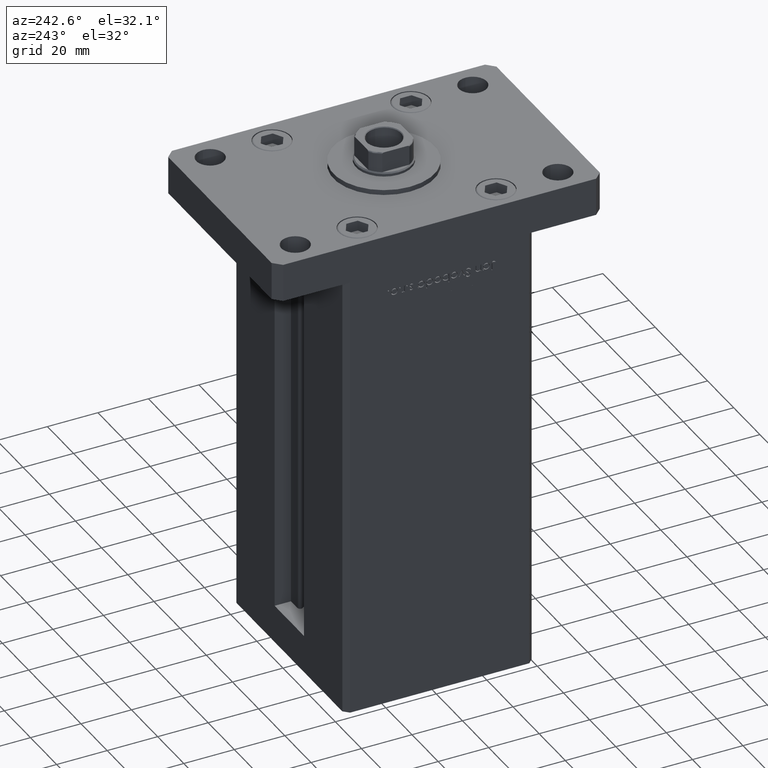
[diagram: clean part render]
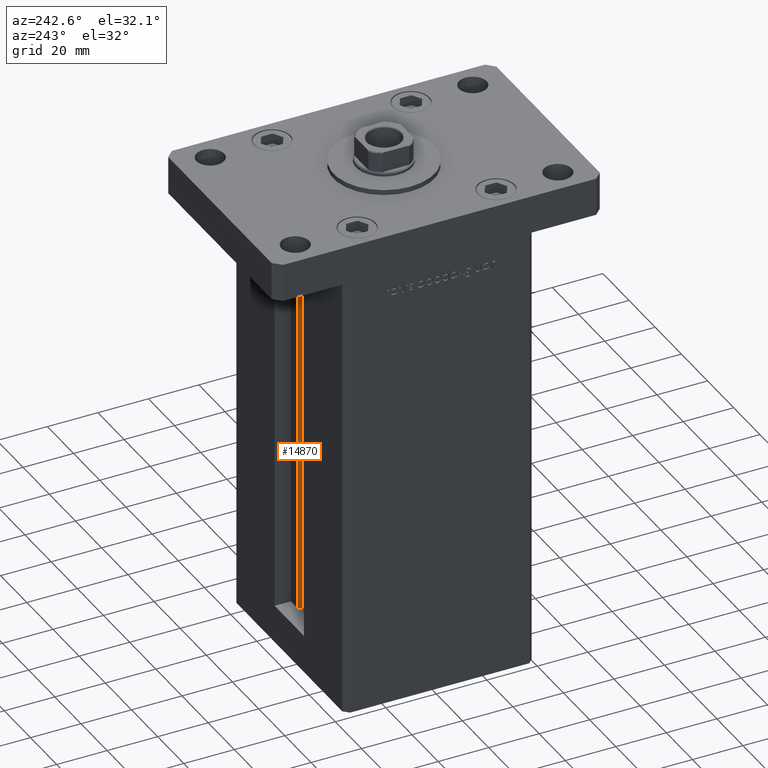
[diagram: same view with one face highlighted and labeled with its STEP entity id]
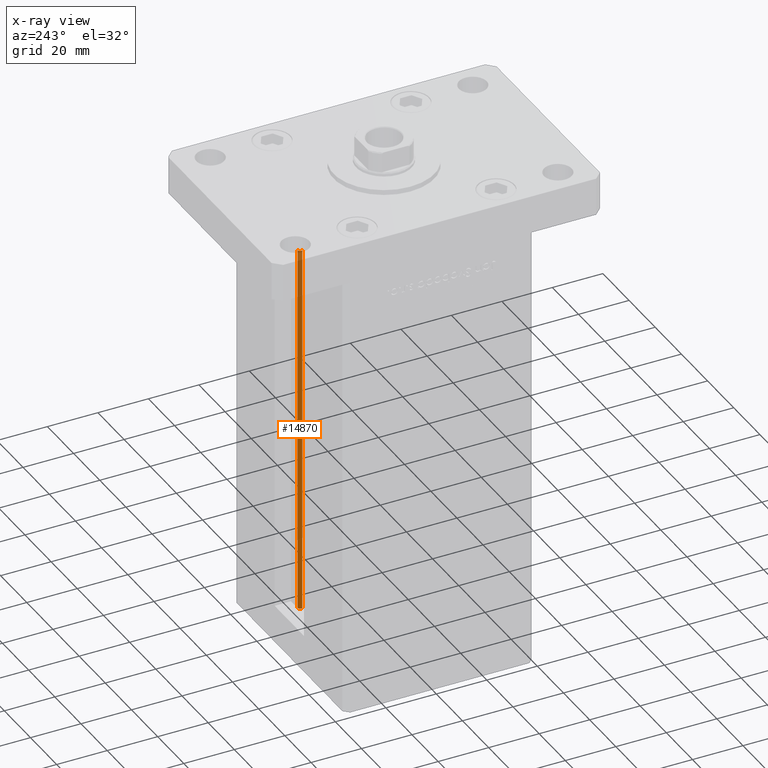
[diagram: x-ray of the same camera — body ghosted, the highlighted face saturated]
A machine part, auxiliary view. The second image highlights one B-rep face of the part: STEP entity #14870.
The next image is the same camera in x-ray: the body ghosted, the highlighted face saturated — about 13% of this face is hidden behind the body in this view.
In plain terms, the highlighted cylindrical surface (edge-blend (fillet) strip) has radius 0.9333 mm, axis along (0, 0, 1).
Its self-contained STEP definition (entity closure, byte-faithful):
#380 = CARTESIAN_POINT ( 'NONE',  ( 5.375042956467943611, 29.59999999999899245, 0.000000000000000000 ) ) ;
#1542 = CARTESIAN_POINT ( 'NONE',  ( 6.183333333333999704, 30.99999999999999289, 148.5000000000000000 ) ) ;
#1544 = CARTESIAN_POINT ( 'NONE',  ( 6.183333333333999704, 30.06666666666599141, 0.000000000000000000 ) ) ;
#5432 = CYLINDRICAL_SURFACE ( 'NONE', #19582, 0.9333333333340015914 ) ;
#6678 = CARTESIAN_POINT ( 'NONE',  ( 5.375042956467943611, 29.59999999999899245, 0.000000000000000000 ) ) ;
#7573 = VERTEX_POINT ( 'NONE', #1542 ) ;
#8756 = LINE ( 'NONE', #34210, #21210 ) ;
#11372 = CIRCLE ( 'NONE', #37321, 0.9333333333340015914 ) ;
#13272 = CIRCLE ( 'NONE', #15866, 0.9333333333340015914 ) ;
#14870 = ADVANCED_FACE ( 'NONE', ( #46076 ), #5432, .T. ) ;
#15866 = AXIS2_PLACEMENT_3D ( 'NONE', #1544, #38131, #33810 ) ;
#16193 = CARTESIAN_POINT ( 'NONE',  ( 6.183333333333999704, 30.99999999999999289, 0.000000000000000000 ) ) ;
#17144 = VERTEX_POINT ( 'NONE', #26437 ) ;
#17364 = DIRECTION ( 'NONE',  ( 1.000000000000000000, 0.000000000000000000, 0.000000000000000000 ) ) ;
#17632 = DIRECTION ( 'NONE',  ( -0.000000000000000000, -0.000000000000000000, 1.000000000000000000 ) ) ;
#19279 = EDGE_CURVE ( 'NONE', #25884, #7573, #8756, .T. ) ;
#19582 = AXIS2_PLACEMENT_3D ( 'NONE', #42812, #17632, #17364 ) ;
#21210 = VECTOR ( 'NONE', #51017, 1000.000000000000000 ) ;
#23190 = DIRECTION ( 'NONE',  ( -0.000000000000000000, -0.000000000000000000, 1.000000000000000000 ) ) ;
#23530 = ORIENTED_EDGE ( 'NONE', *, *, #46618, .F. ) ;
#23854 = DIRECTION ( 'NONE',  ( 0.000000000000000000, 0.000000000000000000, -1.000000000000000000 ) ) ;
#25884 = VERTEX_POINT ( 'NONE', #16193 ) ;
#26437 = CARTESIAN_POINT ( 'NONE',  ( 5.375042956467944499, 29.59999999999899245, 148.5000000000000000 ) ) ;
#28467 = CARTESIAN_POINT ( 'NONE',  ( 6.183333333333999704, 30.06666666666599141, 148.5000000000000000 ) ) ;
#30107 = EDGE_CURVE ( 'NONE', #32184, #17144, #35390, .T. ) ;
#31143 = ORIENTED_EDGE ( 'NONE', *, *, #19279, .F. ) ;
#32184 = VERTEX_POINT ( 'NONE', #380 ) ;
#33810 = DIRECTION ( 'NONE',  ( 1.000000000000000000, 0.000000000000000000, 0.000000000000000000 ) ) ;
#34210 = CARTESIAN_POINT ( 'NONE',  ( 6.183333333333999704, 30.99999999999999289, 0.000000000000000000 ) ) ;
#35390 = LINE ( 'NONE', #6678, #51806 ) ;
#36871 = ORIENTED_EDGE ( 'NONE', *, *, #30107, .T. ) ;
#37321 = AXIS2_PLACEMENT_3D ( 'NONE', #28467, #23854, #44459 ) ;
#38131 = DIRECTION ( 'NONE',  ( -0.000000000000000000, -0.000000000000000000, -1.000000000000000000 ) ) ;
#41714 = EDGE_CURVE ( 'NONE', #17144, #7573, #11372, .T. ) ;
#42812 = CARTESIAN_POINT ( 'NONE',  ( 6.183333333333999704, 30.06666666666599141, 0.000000000000000000 ) ) ;
#43323 = ORIENTED_EDGE ( 'NONE', *, *, #41714, .T. ) ;
#44459 = DIRECTION ( 'NONE',  ( 1.000000000000000000, 0.000000000000000000, 0.000000000000000000 ) ) ;
#46076 = FACE_OUTER_BOUND ( 'NONE', #46987, .T. ) ;
#46618 = EDGE_CURVE ( 'NONE', #32184, #25884, #13272, .T. ) ;
#46987 = EDGE_LOOP ( 'NONE', ( #31143, #23530, #36871, #43323 ) ) ;
#51017 = DIRECTION ( 'NONE',  ( -0.000000000000000000, -0.000000000000000000, 1.000000000000000000 ) ) ;
#51806 = VECTOR ( 'NONE', #23190, 1000.000000000000000 ) ;